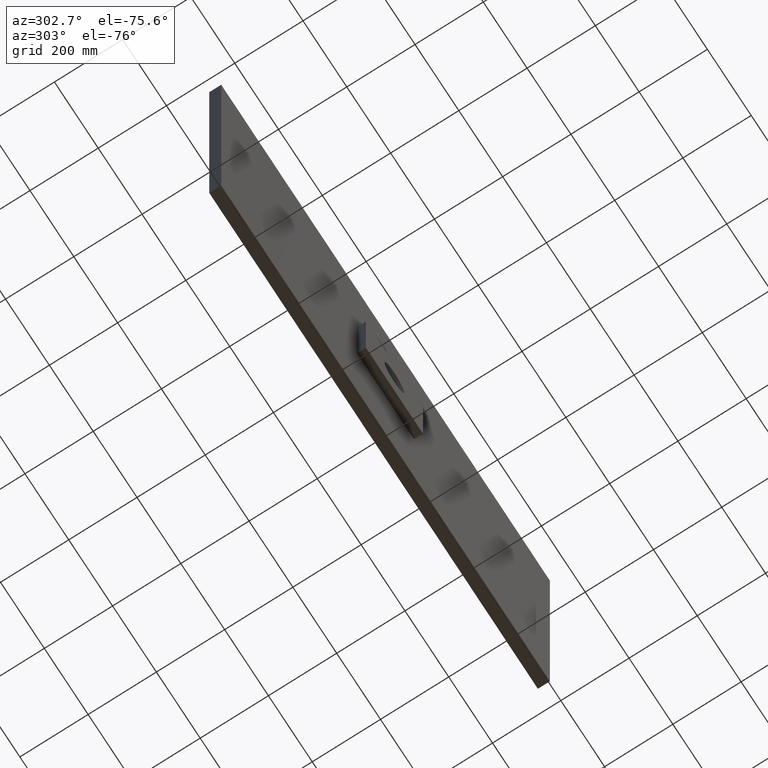
[diagram: clean part render]
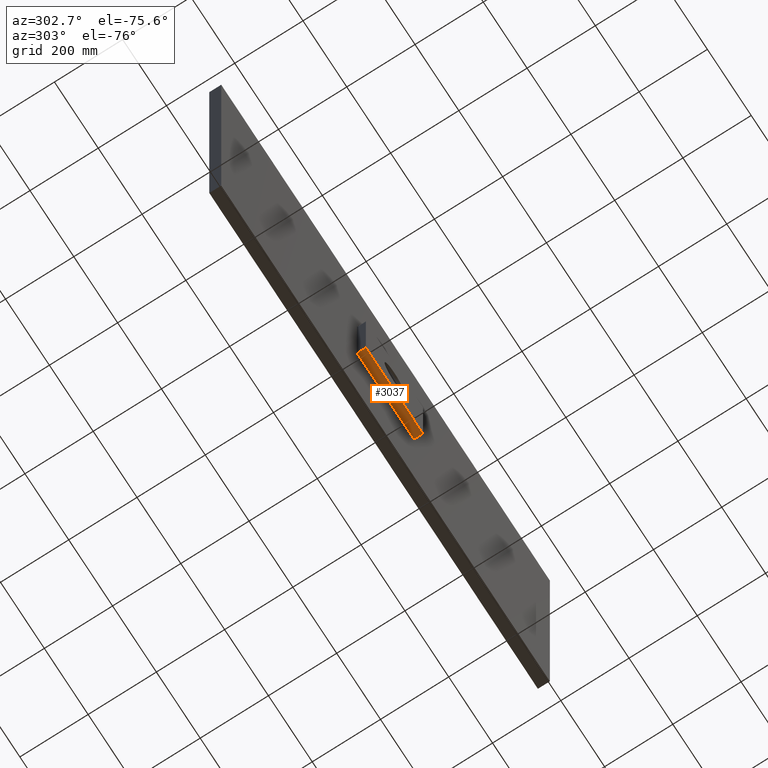
[diagram: same view with one face highlighted and labeled with its STEP entity id]
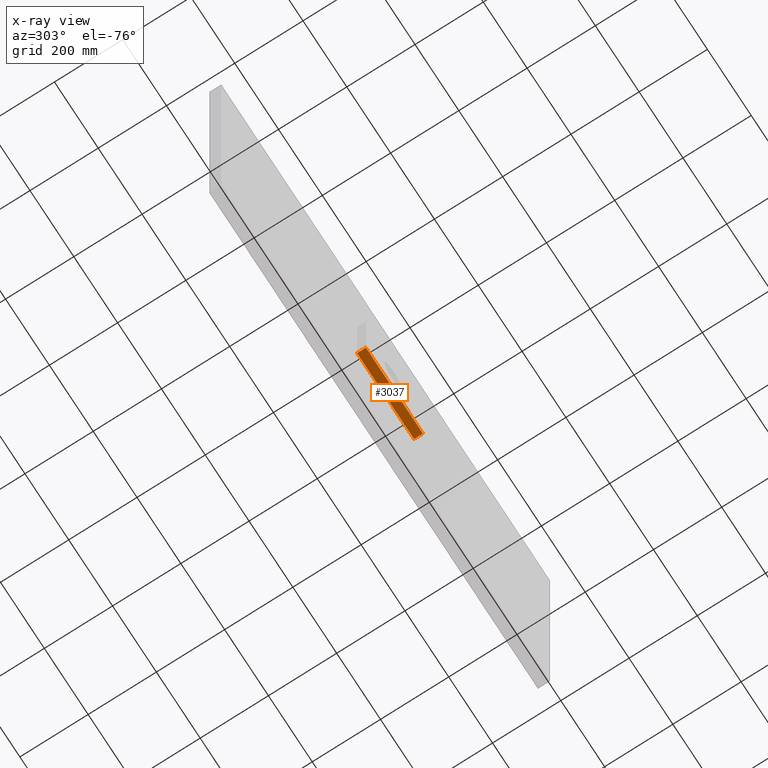
[diagram: x-ray of the same camera — body ghosted, the highlighted face saturated]
A machine part, auxiliary view. The second image highlights one B-rep face of the part: STEP entity #3037.
The next image is the same camera in x-ray: the body ghosted, the highlighted face saturated — about 0% of this face is hidden behind the body in this view.
In plain terms, the highlighted planar face has unit normal (-0, 0, 1).
Its self-contained STEP definition (entity closure, byte-faithful):
#46 = VERTEX_POINT ( 'NONE', #983 ) ;
#353 = VERTEX_POINT ( 'NONE', #2362 ) ;
#399 = CARTESIAN_POINT ( 'NONE',  ( 129.9999999999998000, -26.00000000000000000, -129.9999999999999700 ) ) ;
#437 = ORIENTED_EDGE ( 'NONE', *, *, #1235, .F. ) ;
#554 = VERTEX_POINT ( 'NONE', #399 ) ;
#568 = VECTOR ( 'NONE', #1961, 1000.000000000000000 ) ;
#777 = DIRECTION ( 'NONE',  ( 1.000000000000000000, 0.0000000000000000000, 0.0000000000000000000 ) ) ;
#830 = CARTESIAN_POINT ( 'NONE',  ( -130.0000000000001700, -26.00000000000000000, -129.9999999999999700 ) ) ;
#853 = DIRECTION ( 'NONE',  ( -0.0000000000000000000, 1.000000000000000000, -0.0000000000000000000 ) ) ;
#950 = CARTESIAN_POINT ( 'NONE',  ( 129.9999999999998000, -26.00000000000000000, -129.9999999999999700 ) ) ;
#983 = CARTESIAN_POINT ( 'NONE',  ( -130.0000000000001700, -0.0000000000000000000, -129.9999999999999700 ) ) ;
#1052 = ORIENTED_EDGE ( 'NONE', *, *, #2721, .T. ) ;
#1053 = EDGE_CURVE ( 'NONE', #46, #353, #2753, .T. ) ;
#1162 = VECTOR ( 'NONE', #853, 1000.000000000000000 ) ;
#1235 = EDGE_CURVE ( 'NONE', #3190, #554, #1839, .T. ) ;
#1343 = CARTESIAN_POINT ( 'NONE',  ( -130.0000000000001700, -26.00000000000000000, -129.9999999999999700 ) ) ;
#1546 = FACE_OUTER_BOUND ( 'NONE', #1608, .T. ) ;
#1608 = EDGE_LOOP ( 'NONE', ( #2376, #2510, #437, #1052 ) ) ;
#1761 = EDGE_CURVE ( 'NONE', #554, #353, #2748, .T. ) ;
#1765 = VECTOR ( 'NONE', #777, 1000.000000000000000 ) ;
#1839 = LINE ( 'NONE', #3178, #1765 ) ;
#1890 = DIRECTION ( 'NONE',  ( 1.000000000000000000, 0.0000000000000000000, 0.0000000000000000000 ) ) ;
#1912 = DIRECTION ( 'NONE',  ( -0.0000000000000000000, 0.0000000000000000000, 1.000000000000000000 ) ) ;
#1928 = PLANE ( 'NONE',  #3185 ) ;
#1944 = CARTESIAN_POINT ( 'NONE',  ( -130.0000000000001700, -26.00000000000000000, -129.9999999999999700 ) ) ;
#1961 = DIRECTION ( 'NONE',  ( -0.0000000000000000000, 1.000000000000000000, -0.0000000000000000000 ) ) ;
#2362 = CARTESIAN_POINT ( 'NONE',  ( 129.9999999999998000, 0.0000000000000000000, -129.9999999999999700 ) ) ;
#2376 = ORIENTED_EDGE ( 'NONE', *, *, #1053, .T. ) ;
#2510 = ORIENTED_EDGE ( 'NONE', *, *, #1761, .F. ) ;
#2522 = CARTESIAN_POINT ( 'NONE',  ( -130.0000000000001700, -0.0000000000000000000, -129.9999999999999700 ) ) ;
#2530 = LINE ( 'NONE', #1343, #1162 ) ;
#2599 = DIRECTION ( 'NONE',  ( 1.000000000000000000, 0.0000000000000000000, 0.0000000000000000000 ) ) ;
#2623 = VECTOR ( 'NONE', #2599, 1000.000000000000000 ) ;
#2721 = EDGE_CURVE ( 'NONE', #3190, #46, #2530, .T. ) ;
#2748 = LINE ( 'NONE', #950, #568 ) ;
#2753 = LINE ( 'NONE', #2522, #2623 ) ;
#3037 = ADVANCED_FACE ( 'NONE', ( #1546 ), #1928, .F. ) ;
#3178 = CARTESIAN_POINT ( 'NONE',  ( -130.0000000000001700, -26.00000000000000000, -129.9999999999999700 ) ) ;
#3185 = AXIS2_PLACEMENT_3D ( 'NONE', #1944, #1912, #1890 ) ;
#3190 = VERTEX_POINT ( 'NONE', #830 ) ;